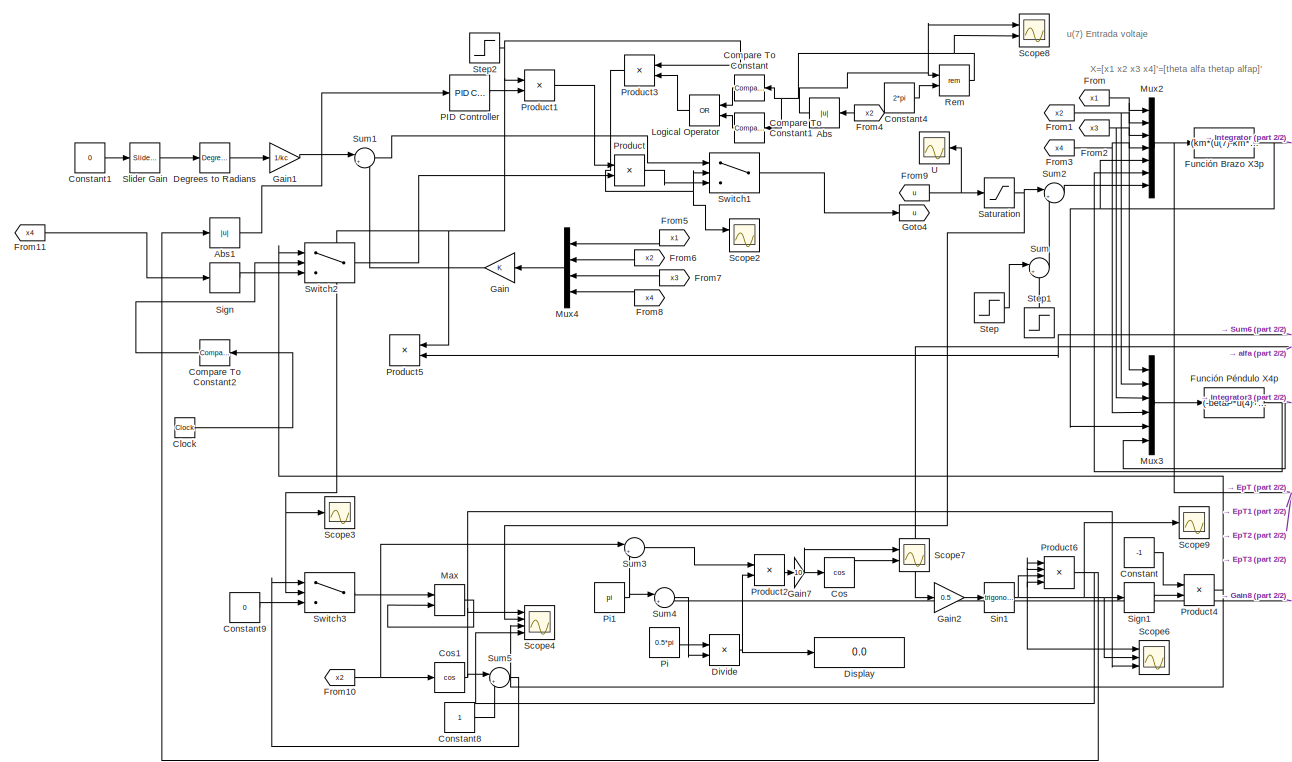
[diagram: root canvas - part 1/2, left side, full height]
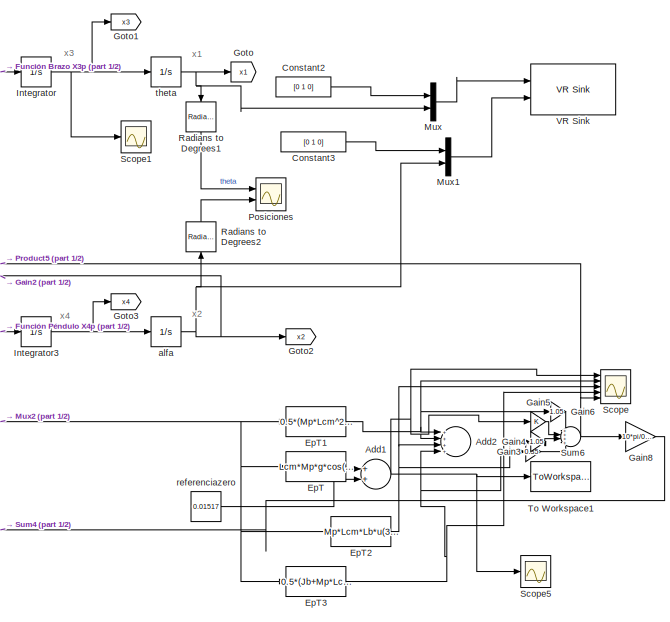
[diagram: root canvas - part 2/2, right side, full height]
MODEL slx_363828690c1d
KIND model
CONFIG AbsTol = auto
CONFIG EnableMultiTasking = on
CONFIG FixedStep = 0.001
CONFIG MaxStep = auto
CONFIG MinStep = auto
CONFIG RelTol = 1e-3
CONFIG SampleTimeConstraint = Unconstrained
CONFIG Solver = ode3
CONFIG SolverName = ode3
CONFIG StartTime = 0.0
CONFIG StopTime = 10
BLOCK [Abs] Abs
  SaturateOnIntegerOverflow = off
BLOCK [Abs] Abs1
  SaturateOnIntegerOverflow = off
BLOCK [Sum] Add1
  InputSameDT = off
  OutDataTypeStr = Inherit: Inherit via internal rule
  Ports = [2, 1]
  SaturateOnIntegerOverflow = off
BLOCK [Sum] Add2
  InputSameDT = off
  Inputs = ++++
  OutDataTypeStr = Inherit: Inherit via internal rule
  Ports = [4, 1]
  SaturateOnIntegerOverflow = off
BLOCK [Clock] Clock
BLOCK [Reference] Compare To Constant  REF=simulink/Logic and Bit
Operations/Compare
To Constant
  Ports = [1, 1]
  SourceBlock = simulink/Logic and Bit\nOperations/Compare\nTo Constant
  SourceProductBaseCode = SL
  SourceProductName = Simulink
  SourceType = Compare To Constant
BLOCK [Reference] Compare To Constant1  REF=simulink/Logic and Bit
Operations/Compare
To Constant
  Ports = [1, 1]
  SourceBlock = simulink/Logic and Bit\nOperations/Compare\nTo Constant
  SourceProductBaseCode = SL
  SourceProductName = Simulink
  SourceType = Compare To Constant
BLOCK [Reference] Compare To Constant2  REF=simulink/Logic and Bit
Operations/Compare
To Constant
  Ports = [1, 1]
  SourceBlock = simulink/Logic and Bit\nOperations/Compare\nTo Constant
  SourceProductBaseCode = SL
  SourceProductName = Simulink
  SourceType = Compare To Constant
BLOCK [Constant] Constant
  Value = -1
BLOCK [Constant] Constant1
  Value = 0
BLOCK [Constant] Constant2
  Value = [0 1 0]
BLOCK [Constant] Constant3
  Value = [0 1 0]
BLOCK [Constant] Constant4
  Value = 2*pi
BLOCK [Constant] Constant8
BLOCK [Constant] Constant9
  Value = 0
BLOCK [Trigonometry] Cos
  Operator = cos
  Ports = [1, 1]
BLOCK [Trigonometry] Cos1
  Operator = cos
  Ports = [1, 1]
BLOCK [Reference] Degrees to Radians  REF=simulink_extras/Transformations/Degrees to
Radians
  Ports = [1, 1]
  SourceBlock = simulink_extras/Transformations/Degrees to\nRadians
  SourceProductBaseCode = SL
  SourceProductName = Simulink
  SourceType = DegreesToRadians
BLOCK [Display] Display
  Decimation = 1
  Ports = [1]
BLOCK [Product] Divide
  InputSameDT = off
  Inputs = */
  OutDataTypeStr = Inherit: Inherit via internal rule
  Ports = [2, 1]
  RndMeth = Floor
  SaturateOnIntegerOverflow = off
BLOCK [Fcn] EpT
  Expr = Lcm*Mp*g*cos(u(2))
BLOCK [Fcn] EpT1
  Expr = 0.5*(Mp*Lcm^2+Jp)*u(4)^2
BLOCK [Fcn] EpT2
  Expr = Mp*Lcm*Lb*u(3)*u(4)*cos(u(2))+0.5*Mp*Lcm^2*u(3)^2*(cos(u(2)))^2
BLOCK [Fcn] EpT3
  Expr = 0.5*(Jb+Mp*Lcm^2+Mp*Lb^2)*u(3)^2
BLOCK [From] From
  GotoTag = x1
BLOCK [From] From1
  GotoTag = x2
BLOCK [From] From10
  GotoTag = x2
BLOCK [From] From11
  GotoTag = x4
BLOCK [From] From2
  GotoTag = x3
BLOCK [From] From3
  GotoTag = x4
BLOCK [From] From4
  GotoTag = x2
BLOCK [From] From5
  GotoTag = x1
BLOCK [From] From6
  GotoTag = x2
BLOCK [From] From7
  GotoTag = x3
BLOCK [From] From8
  GotoTag = x4
BLOCK [From] From9
  GotoTag = u
BLOCK [Fcn] Función Brazo X3p
  Expr = (km*(u(7)-km*u(3))/(Rm)-betaR*u(3)+(Lb*Lcm*Mp*u(4)^2*sin(u(2)))-Lb*Lcm*Mp*u(6)*cos(u(2))-2*Lcm^2*Mp*u(3)*u(4)*cos(u(2))*sin(u(2)))/(Mp*Lb^2-Mp*Lcm^2*cos(u(2))^2+Mp*Lcm^2+Jb)
BLOCK [Fcn] Función Péndulo X4p
  Expr = (-betaP*u(4)+Lcm^2*Mp*Lcm^2*cos(u(2))*sin(u(2))+Lcm*Mp*g*sin(u(2))-Lb*Lcm*Mp*u(5)*cos(u(2)))/(Mp*Lcm^2+Jp)
BLOCK [Gain] Gain
  Gain = K
  Multiplication = Matrix(K*u)
  OutDataTypeStr = Inherit: Inherit via internal rule
  ParamDataTypeStr = Inherit: Inherit via internal rule
  SaturateOnIntegerOverflow = off
BLOCK [Gain] Gain1
  Gain = 1/kc
  Multiplication = Matrix(K*u)
  OutDataTypeStr = Inherit: Inherit via internal rule
  ParamDataTypeStr = Inherit: Inherit via internal rule
  SaturateOnIntegerOverflow = off
BLOCK [Gain] Gain2
  Gain = 0.5
  OutDataTypeStr = Inherit: Inherit via internal rule
  ParamDataTypeStr = Inherit: Inherit via internal rule
  SaturateOnIntegerOverflow = off
BLOCK [Gain] Gain3
  Gain = 0.35
  OutDataTypeStr = Inherit: Inherit via internal rule
  ParamDataTypeStr = Inherit: Inherit via internal rule
  SaturateOnIntegerOverflow = off
BLOCK [Gain] Gain4
  Gain = 1.05
  OutDataTypeStr = Inherit: Inherit via internal rule
  ParamDataTypeStr = Inherit: Inherit via internal rule
  SaturateOnIntegerOverflow = off
BLOCK [Gain] Gain5
  OutDataTypeStr = Inherit: Inherit via internal rule
  ParamDataTypeStr = Inherit: Inherit via internal rule
  SaturateOnIntegerOverflow = off
BLOCK [Gain] Gain6
  Gain = 1.05
  OutDataTypeStr = Inherit: Inherit via internal rule
  ParamDataTypeStr = Inherit: Inherit via internal rule
  SaturateOnIntegerOverflow = off
BLOCK [Gain] Gain7
  Gain = 10
  OutDataTypeStr = Inherit: Inherit via internal rule
  ParamDataTypeStr = Inherit: Inherit via internal rule
  SaturateOnIntegerOverflow = off
BLOCK [Gain] Gain8
  Gain = 10*pi/0.03
  OutDataTypeStr = Inherit: Inherit via internal rule
  ParamDataTypeStr = Inherit: Inherit via internal rule
  SaturateOnIntegerOverflow = off
BLOCK [Goto] Goto
  GotoTag = x1
BLOCK [Goto] Goto1
  GotoTag = x3
BLOCK [Goto] Goto2
  GotoTag = x2
BLOCK [Goto] Goto3
  GotoTag = x4
BLOCK [Goto] Goto4
  GotoTag = u
BLOCK [Integrator] Integrator
  Ports = [1, 1]
BLOCK [Integrator] Integrator3
  Ports = [1, 1]
BLOCK [Logic] Logical Operator
  AllPortsSameDT = off
  Operator = OR
  OutDataTypeStr = boolean
  Ports = [2, 1]
BLOCK [MinMax] Max
  Function = max
  InputSameDT = off
  Inputs = 2
  Ports = [2, 1]
  SaturateOnIntegerOverflow = off
BLOCK [Mux] Mux
  DisplayOption = bar
  Inputs = 2
  Ports = [2, 1]
BLOCK [Mux] Mux1
  DisplayOption = bar
  Inputs = 2
  Ports = [2, 1]
BLOCK [Mux] Mux2
  DisplayOption = bar
  Inputs = 7
  Ports = [7, 1]
BLOCK [Mux] Mux3
  DisplayOption = bar
  Inputs = 6
  Ports = [6, 1]
BLOCK [Mux] Mux4
  DisplayOption = bar
  Ports = [4, 1]
BLOCK [Reference] PID Controller  REF=simulink/Continuous/PID Controller
  Ports = [1, 1]
  SourceBlock = simulink/Continuous/PID Controller
  SourceProductBaseCode = SL
  SourceProductName = Simulink
  SourceType = PID 1dof
BLOCK [Constant] Pi
  OutDataTypeStr = Inherit: Inherit via back propagation
  Value = 0.5*pi
BLOCK [Constant] Pi1
  OutDataTypeStr = Inherit: Inherit via back propagation
  Value = pi
BLOCK [Scope] Posiciones
  Floating = off
  NumInputPorts = 2
  Ports = [2]
  ScopeSpecificationString = Simulink.scopes.TimeScopeBlockCfg('CurrentConfiguration', extmgr.ConfigurationSet(extmgr.Configuration('Core','General UI',true),extmgr.Configuration('Core','Source UI',true),extmgr.Configuration('Sources','WiredSimulink',true),extmgr.Configuration('Visuals','Time Domain',true,'SerializedDisplays',{struct('MinYLimReal','-72.96983','MaxYLimReal','443.23479','YLabelReal','','MinYLimMag','0.00000','M...<+2378ch>
BLOCK [Product] Product
  InputSameDT = off
  OutDataTypeStr = Inherit: Inherit via internal rule
  Ports = [2, 1]
  RndMeth = Floor
  SaturateOnIntegerOverflow = off
BLOCK [Product] Product1
  InputSameDT = off
  OutDataTypeStr = Inherit: Inherit via internal rule
  Ports = [2, 1]
  RndMeth = Floor
  SaturateOnIntegerOverflow = off
BLOCK [Product] Product2
  InputSameDT = off
  OutDataTypeStr = Inherit: Inherit via internal rule
  Ports = [2, 1]
  RndMeth = Floor
  SaturateOnIntegerOverflow = off
BLOCK [Product] Product3
  InputSameDT = off
  OutDataTypeStr = Inherit: Inherit via internal rule
  Ports = [2, 1]
  RndMeth = Floor
  SaturateOnIntegerOverflow = off
BLOCK [Product] Product4
  InputSameDT = off
  OutDataTypeStr = Inherit: Inherit via internal rule
  Ports = [2, 1]
  RndMeth = Floor
  SaturateOnIntegerOverflow = off
BLOCK [Product] Product5
  InputSameDT = off
  OutDataTypeStr = Inherit: Inherit via internal rule
  Ports = [2, 1]
  RndMeth = Floor
  SaturateOnIntegerOverflow = off
BLOCK [Product] Product6
  InputSameDT = off
  Inputs = 4
  OutDataTypeStr = Inherit: Inherit via internal rule
  Ports = [4, 1]
  RndMeth = Floor
  SaturateOnIntegerOverflow = off
BLOCK [Reference] Radians to Degrees1  REF=simulink_extras/Transformations/Radians
to Degrees
  Ports = [1, 1]
  SourceBlock = simulink_extras/Transformations/Radians\nto Degrees
  SourceProductBaseCode = SL
  SourceProductName = Simulink
  SourceType = RadiansToDegrees
BLOCK [Reference] Radians to Degrees2  REF=simulink_extras/Transformations/Radians
to Degrees
  Ports = [1, 1]
  SourceBlock = simulink_extras/Transformations/Radians\nto Degrees
  SourceProductBaseCode = SL
  SourceProductName = Simulink
  SourceType = RadiansToDegrees
BLOCK [Math] Rem
  Operator = rem
  Ports = [2, 1]
BLOCK [Saturate] Saturation
  InputPortMap = u0
  LowerLimit = -10
  Ports = [1, 1]
  UpperLimit = 10
BLOCK [Scope] Scope
  Floating = off
  NumInputPorts = 5
  Ports = [5]
  ScopeSpecificationString = Simulink.scopes.TimeScopeBlockCfg('CurrentConfiguration', extmgr.ConfigurationSet(extmgr.Configuration('Core','General UI',true),extmgr.Configuration('Core','Source UI',true),extmgr.Configuration('Sources','WiredSimulink',true,'DataLoggingVariableName','ScopeData1'),extmgr.Configuration('Visuals','Time Domain',true,'SerializedDisplays',{struct('MinYLimReal','-0.06687','MaxYLimReal','0.08984','YLab...<+1574ch>
BLOCK [Scope] Scope1
  Floating = off
  NumInputPorts = 1
  Ports = [1]
  ScopeSpecificationString = Simulink.scopes.TimeScopeBlockCfg('CurrentConfiguration', extmgr.ConfigurationSet(extmgr.Configuration('Core','General UI',true),extmgr.Configuration('Core','Source UI',true),extmgr.Configuration('Sources','WiredSimulink',true,'DataLoggingVariableName','ScopeData1'),extmgr.Configuration('Visuals','Time Domain',true,'SerializedDisplays',{struct('MinYLimReal','-6.24402','MaxYLimReal','10.06707','YLa...<+1400ch>
BLOCK [Scope] Scope2
  Floating = off
  NumInputPorts = 2
  Ports = [2]
  ScopeSpecificationString = Simulink.scopes.TimeScopeBlockCfg('CurrentConfiguration', extmgr.ConfigurationSet(extmgr.Configuration('Core','General UI',true),extmgr.Configuration('Core','Source UI',true),extmgr.Configuration('Sources','WiredSimulink',true,'DataLoggingVariableName','ScopeData1'),extmgr.Configuration('Visuals','Time Domain',true,'SerializedDisplays',{struct('MinYLimReal','-10.64845','MaxYLimReal','21.8659','YLa...<+1427ch>
BLOCK [Scope] Scope3
  Floating = off
  NumInputPorts = 1
  Ports = [1]
  ScopeSpecificationString = Simulink.scopes.TimeScopeBlockCfg('CurrentConfiguration', extmgr.ConfigurationSet(extmgr.Configuration('Core','General UI',true),extmgr.Configuration('Core','Source UI',true),extmgr.Configuration('Sources','WiredSimulink',true,'DataLoggingVariableName','ScopeData5'),extmgr.Configuration('Visuals','Time Domain',true,'SerializedDisplays',{struct('MinYLimReal','-0.125','MaxYLimReal','1.125','YLabelRe...<+1352ch>
BLOCK [Scope] Scope4
  Floating = off
  NumInputPorts = 4
  Ports = [4]
  ScopeSpecificationString = Simulink.scopes.TimeScopeBlockCfg('CurrentConfiguration', extmgr.ConfigurationSet(extmgr.Configuration('Core','General UI',true),extmgr.Configuration('Core','Source UI',true),extmgr.Configuration('Sources','WiredSimulink',true,'DataLoggingVariableName','ScopeData5'),extmgr.Configuration('Visuals','Time Domain',true,'SerializedDisplays',{struct('MinYLimReal','-12.49976','MaxYLimReal','12.49975','YL...<+1808ch>
BLOCK [Scope] Scope5
  Floating = off
  NumInputPorts = 1
  Ports = [1]
  ScopeSpecificationString = Simulink.scopes.TimeScopeBlockCfg('CurrentConfiguration', extmgr.ConfigurationSet(extmgr.Configuration('Core','General UI',true),extmgr.Configuration('Core','Source UI',true),extmgr.Configuration('Sources','WiredSimulink',true,'DataLoggingVariableName','ScopeData1'),extmgr.Configuration('Visuals','Time Domain',true,'SerializedDisplays',{struct('MinYLimReal','-0.00379','MaxYLimReal','0.03413','YLab...<+1382ch>
BLOCK [Scope] Scope6
  Floating = off
  NumInputPorts = 3
  Ports = [3]
  ScopeSpecificationString = Simulink.scopes.TimeScopeBlockCfg('CurrentConfiguration', extmgr.ConfigurationSet(extmgr.Configuration('Core','General UI',true),extmgr.Configuration('Core','Source UI',true),extmgr.Configuration('Sources','WiredSimulink',true,'DataLoggingVariableName','ScopeData2'),extmgr.Configuration('Visuals','Time Domain',true,'SerializedDisplays',{struct('MinYLimReal','-4.08819','MaxYLimReal','36.79368','YLa...<+1427ch>
BLOCK [Scope] Scope7
  Floating = off
  NumInputPorts = 2
  Ports = [2]
  ScopeSpecificationString = Simulink.scopes.TimeScopeBlockCfg('CurrentConfiguration', extmgr.ConfigurationSet(extmgr.Configuration('Core','General UI',true),extmgr.Configuration('Core','Source UI',true),extmgr.Configuration('Sources','WiredSimulink',true,'DataLoggingVariableName','ScopeData3'),extmgr.Configuration('Visuals','Time Domain',true,'SerializedDisplays',{struct('MinYLimReal','-0.36924','MaxYLimReal','1.30401','YLab...<+1443ch>
BLOCK [Scope] Scope8
  Floating = off
  NumInputPorts = 2
  Ports = [2]
  ScopeSpecificationString = Simulink.scopes.TimeScopeBlockCfg('CurrentConfiguration', extmgr.ConfigurationSet(extmgr.Configuration('Core','General UI',true),extmgr.Configuration('Core','Source UI',true),extmgr.Configuration('Sources','WiredSimulink',true,'DataLoggingVariableName','ScopeData2'),extmgr.Configuration('Visuals','Time Domain',true,'SerializedDisplays',{struct('MinYLimReal','-0.57836','MaxYLimReal','5.20526','YLab...<+1482ch>
BLOCK [Scope] Scope9
  Floating = off
  NumInputPorts = 1
  Ports = [1]
  ScopeSpecificationString = Simulink.scopes.TimeScopeBlockCfg('CurrentConfiguration', extmgr.ConfigurationSet(extmgr.Configuration('Core','General UI',true),extmgr.Configuration('Core','Source UI',true),extmgr.Configuration('Sources','WiredSimulink',true,'DataLoggingVariableName','ScopeData3'),extmgr.Configuration('Visuals','Time Domain',true,'SerializedDisplays',{struct('MinYLimReal','-0.125','MaxYLimReal','1.125','YLabelRe...<+1351ch>
BLOCK [Signum] Sign
BLOCK [Signum] Sign1
BLOCK [Trigonometry] Sin1
  Ports = [1, 1]
BLOCK [Reference] Slider Gain  REF=simulink/Math
Operations/Slider
Gain
  Ports = [1, 1]
  SourceBlock = simulink/Math\nOperations/Slider\nGain
  SourceProductBaseCode = SL
  SourceProductName = Simulink
  SourceType = Slider Gain
BLOCK [Step] Step
  SampleTime = 0
  Time = 0.05
BLOCK [Step] Step1
  After = -1
  SampleTime = 0
  Time = 0
BLOCK [Step] Step2
  SampleTime = 0
BLOCK [Sum] Sum
  IconShape = round
  InputSameDT = off
  Inputs = |++
  OutDataTypeStr = Inherit: Inherit via internal rule
  Ports = [2, 1]
  SaturateOnIntegerOverflow = off
BLOCK [Sum] Sum1
  IconShape = round
  InputSameDT = off
  Inputs = |+-
  OutDataTypeStr = Inherit: Inherit via internal rule
  Ports = [2, 1]
  SaturateOnIntegerOverflow = off
BLOCK [Sum] Sum2
  IconShape = round
  InputSameDT = off
  Inputs = |++
  OutDataTypeStr = Inherit: Inherit via internal rule
  Ports = [2, 1]
  SaturateOnIntegerOverflow = off
BLOCK [Sum] Sum3
  IconShape = round
  InputSameDT = off
  Inputs = |+-
  OutDataTypeStr = Inherit: Inherit via internal rule
  Ports = [2, 1]
  SaturateOnIntegerOverflow = off
BLOCK [Sum] Sum4
  IconShape = round
  InputSameDT = off
  Inputs = |+-
  OutDataTypeStr = Inherit: Inherit via internal rule
  Ports = [2, 1]
  SaturateOnIntegerOverflow = off
BLOCK [Sum] Sum5
  IconShape = round
  InputSameDT = off
  Inputs = |++
  OutDataTypeStr = Inherit: Inherit via internal rule
  Ports = [2, 1]
  SaturateOnIntegerOverflow = off
BLOCK [Sum] Sum6
  IconShape = round
  InputSameDT = off
  Inputs = ++++
  OutDataTypeStr = Inherit: Inherit via internal rule
  Ports = [4, 1]
  SaturateOnIntegerOverflow = off
BLOCK [Switch] Switch1
  Criteria = u2 > Threshold
  InputSameDT = off
  SaturateOnIntegerOverflow = off
BLOCK [Switch] Switch2
  Criteria = u2 > Threshold
  InputSameDT = off
  SaturateOnIntegerOverflow = off
BLOCK [Switch] Switch3
  Criteria = u2 > Threshold
  InputSameDT = off
  SaturateOnIntegerOverflow = off
BLOCK [ToWorkspace] To Workspace1
  FixptAsFi = on
  MaxDataPoints = inf
  Ports = [1]
  SampleTime = -1
  Save2DSignal = 3-D array (concatenate along third dimension)
  SaveFormat = Timeseries
  VariableName = Ep
BLOCK [Scope] U
  Floating = off
  NumInputPorts = 1
  Ports = [1]
  ScopeSpecificationString = Simulink.scopes.TimeScopeBlockCfg('CurrentConfiguration', extmgr.ConfigurationSet(extmgr.Configuration('Core','General UI',true),extmgr.Configuration('Core','Source UI',true),extmgr.Configuration('Sources','WiredSimulink',true,'DataLoggingVariableName','ScopeData1'),extmgr.Configuration('Visuals','Time Domain',true,'SerializedDisplays',{struct('MinYLimReal','-1.96028','MaxYLimReal','1.96028','YLab...<+1446ch>
BLOCK [Reference] VR Sink  REF=vrlib/VR Sink
  InstantiateOnLoad = on
  Ports = [2]
  SourceBlock = vrlib/VR Sink
  SourceProductBaseCode = VR
  SourceProductName = Simulink 3D Animation
  SourceType = Virtual Reality Sink
BLOCK [Integrator] alfa
  Ports = [1, 1]
BLOCK [Constant] referenciazero
  Value = 0.01517
BLOCK [Integrator] theta
  Ports = [1, 1]
ANNOTATION (root): X=[x1 x2 x3 x4]'=[theta alfa thetap alfap]'
ANNOTATION (root): u(7) Entrada voltaje
ANNOTATION (root): x1
ANNOTATION (root): x2
ANNOTATION (root): x3
ANNOTATION (root): x4
LINE Abs1:1 -> PID Controller:1
NET Abs:1 -> Rem:1, Scope8:1
NET Add1:1 -> Add2:2, Gain5:1, Scope5:1, Scope:1, To Workspace1:1
LINE Clock:1 -> Compare To Constant2:1
LINE Compare To Constant1:1 -> Logical Operator:2
LINE Compare To Constant2:1 -> Switch2:2
LINE Compare To Constant:1 -> Logical Operator:1
LINE Constant1:1 -> Slider Gain:1
LINE Constant2:1 -> Mux:1
LINE Constant3:1 -> Mux1:1
LINE Constant4:1 -> Rem:2
LINE Constant8:1 -> Sum5:2
LINE Constant9:1 -> Switch3:3
LINE Constant:1 -> Product4:1
NET Cos1:1 -> Scope4:1, Scope6:3, Sum5:1
LINE Cos:1 -> Scope7:2
LINE Degrees to Radians:1 -> Gain1:1
NET Divide:1 -> Display:1, Product2:2
NET EpT1:1 -> Add2:1, Gain6:1, Scope:2
NET EpT2:1 -> Add2:3, Gain4:1, Scope:3
NET EpT3:1 -> Add2:4, Gain3:1, Scope:4
LINE EpT:1 -> Add1:1
NET From10:1 -> Cos1:1, Sum3:1
LINE From11:1 -> Sign:1
NET From1:1 -> Mux2:2, Mux3:2
NET From2:1 -> Mux2:3, Mux3:3
NET From3:1 -> Mux2:4, Mux3:4
LINE From4:1 -> Abs:1
LINE From5:1 -> Mux4:1
LINE From6:1 -> Mux4:2
LINE From7:1 -> Mux4:3
LINE From8:1 -> Mux4:4
NET From9:1 -> Saturation:1, U:1
NET From:1 -> Mux2:1, Mux3:1
NET Función Brazo X3p:1 -> Integrator:1, Mux2:5, Mux3:5
NET Función Péndulo X4p:1 -> Integrator3:1, Mux2:6, Mux3:6
LINE Gain1:1 -> Sum1:1
LINE Gain2:1 -> Sin1:1
LINE Gain3:1 -> Sum6:4
LINE Gain4:1 -> Sum6:3
LINE Gain5:1 -> Sum6:2
LINE Gain6:1 -> Sum6:1
NET Gain7:1 -> Cos:1, Scope7:1
LINE Gain8:1 -> Sum4:2
LINE Gain:1 -> Sum1:2
NET Integrator3:1 -> Goto3:1, alfa:1
NET Integrator:1 -> Goto1:1, Scope1:1, theta:1
LINE Logical Operator:1 -> Product3:2
LINE Max:1 -> Max:2
LINE Mux1:1 -> VR Sink:2
NET Mux2:1 -> EpT1:1, EpT2:1, EpT3:1, EpT:1, Función Brazo X3p:1
LINE Mux3:1 -> Función Péndulo X4p:1
LINE Mux4:1 -> Gain:1
LINE Mux:1 -> VR Sink:1
LINE PID Controller:1 -> Product1:2
NET Pi1:1 -> Sum3:2, Sum4:1
LINE Pi:1 -> Divide:1
LINE Product1:1 -> Product:1
LINE Product2:1 -> Gain7:1
NET Product3:1 -> Scope2:1, Switch1:2
NET Product4:1 -> Scope4:3, Switch2:1
NET Product6:1 -> Abs1:1, Scope4:4
LINE Product:1 -> Switch1:3
LINE Radians to Degrees1:1 -> Posiciones:1
LINE Radians to Degrees2:1 -> Posiciones:2
NET Rem:1 -> Compare To Constant1:1, Compare To Constant:1, Scope8:2
NET Saturation:1 -> Scope4:2, Sum2:1
LINE Sign1:1 -> Product4:2
LINE Sign:1 -> Switch2:3
NET Sin1:1 -> Product6:1, Product6:2, Product6:3, Product6:4, Scope6:1, Scope6:2, Scope9:1, Sign1:1
LINE Slider Gain:1 -> Degrees to Radians:1
LINE Step1:1 -> Sum:2
NET Step2:1 -> Product1:1, Product3:1, Product5:1, Scope3:1, Switch3:2
LINE Step:1 -> Sum:1
LINE Sum1:1 -> Switch1:1
LINE Sum2:1 -> Mux2:7
LINE Sum3:1 -> Product2:1
LINE Sum4:1 -> Divide:2
LINE Sum5:1 -> Switch3:1
NET Sum6:1 -> Gain8:1, Product5:2, Scope:5
LINE Sum:1 -> Sum2:2
LINE Switch1:1 -> Goto4:1
LINE Switch2:1 -> Product:2
LINE Switch3:1 -> Max:1
NET alfa:1 -> Gain2:1, Goto2:1, Mux1:2, Radians to Degrees2:1
LINE referenciazero:1 -> Add1:2
NET theta:1 -> Goto:1, Mux:2, Radians to Degrees1:1
note: NET lines group one-source signal fan-out (src -> all destinations, sorted); 1:1 wires keep LINE
